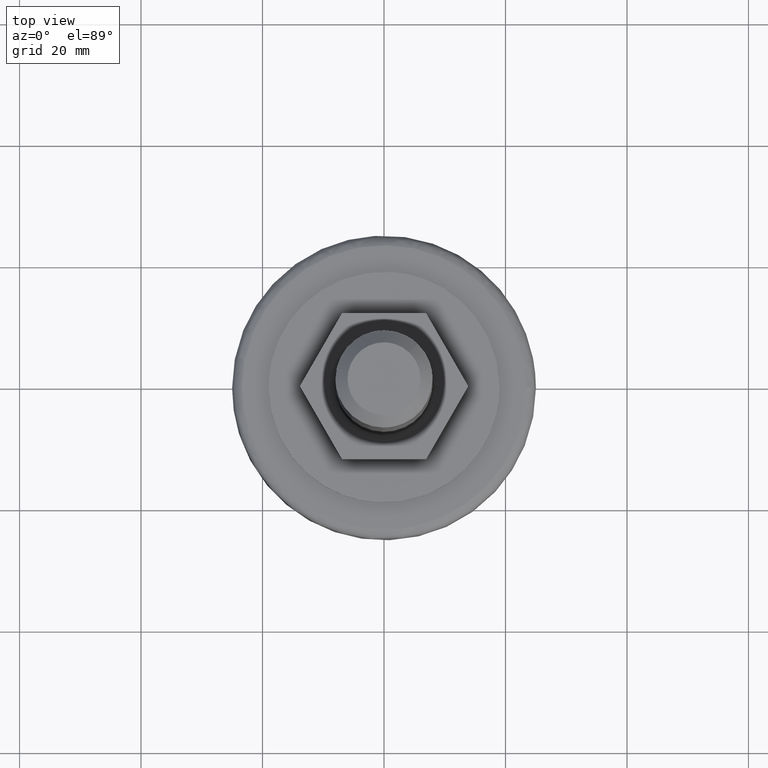
[diagram: clean part render]
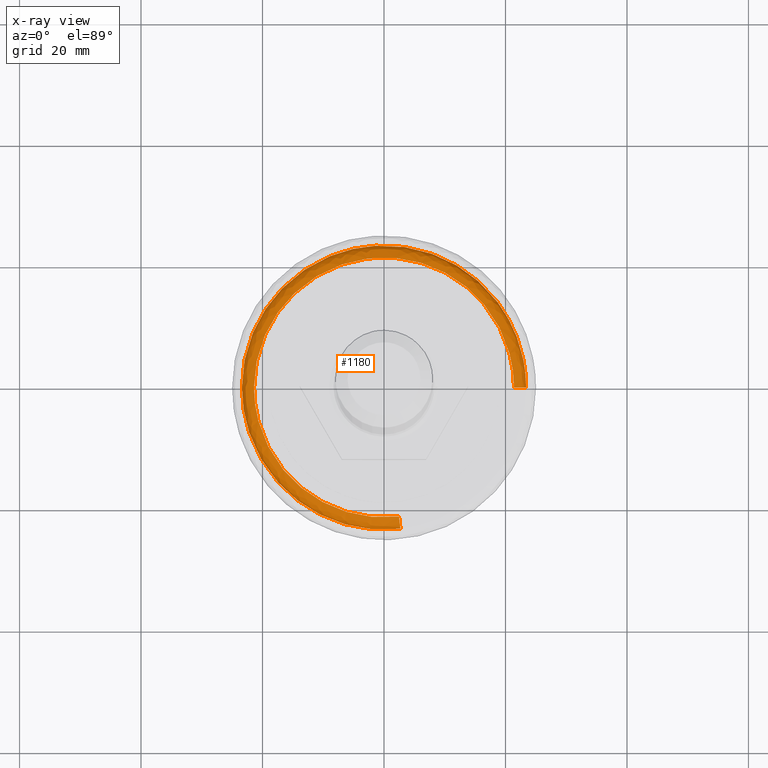
[diagram: x-ray — body ghosted, one internal face saturated and labeled with its STEP entity id]
A machine part, top view, then the same camera in x-ray: the body is ghosted and one INTERNAL B-rep face — a face not visible from any outside direction — is saturated and labeled: STEP entity #1180.
In plain terms, the highlighted face is a freeform B-spline surface patch.
Its self-contained STEP definition (entity closure, byte-faithful):
#898=CARTESIAN_POINT('',(21.905765991877519,8.227843964781197,12.900000000006751));
#899=VERTEX_POINT('',#898);
#900=CARTESIAN_POINT('',(23.399999999999999,1.921379E-017,12.900000000010650));
#901=VERTEX_POINT('',#900);
#902=CARTESIAN_POINT('',(21.905765991877512,8.227843964781197,12.900000000006751));
#903=CARTESIAN_POINT('',(23.399999999999999,4.249603655535283,12.900000000008713));
#904=CARTESIAN_POINT('',(23.399999999999999,1.921379E-017,12.900000000010650));
#912=(BOUNDED_CURVE()B_SPLINE_CURVE(2,(#902,#903,#904),.UNSPECIFIED.,.F.,.U.)B_SPLINE_CURVE_WITH_KNOTS((3,3),(0.440284290851429,0.500000000000000),.UNSPECIFIED.)CURVE()GEOMETRIC_REPRESENTATION_ITEM()RATIONAL_B_SPLINE_CURVE((0.893499701429310,0.930038694934988,1.0))REPRESENTATION_ITEM(''));
#913=EDGE_CURVE('',#899,#901,#912,.T.);
#915=CARTESIAN_POINT('',(2.701862966264285,-23.243492347569660,12.900000000008220));
#916=VERTEX_POINT('',#915);
#930=CARTESIAN_POINT('',(-23.399999999999999,0.0,12.900000000000000));
#931=VERTEX_POINT('',#930);
#932=CARTESIAN_POINT('',(2.701862966264285,-23.243492347569664,12.900000000008220));
#933=CARTESIAN_POINT('',(1.355464400901188,-23.400000000000006,12.900000000000000));
#934=CARTESIAN_POINT('',(0.0,-23.399999999999999,12.900000000000000));
#935=CARTESIAN_POINT('',(-23.400000000000009,-23.400000000000009,12.900000000000002));
#936=CARTESIAN_POINT('',(-23.399999999999999,0.0,12.900000000000000));
#944=(BOUNDED_CURVE()B_SPLINE_CURVE(2,(#932,#933,#934,#935,#936),.UNSPECIFIED.,.F.,.U.)B_SPLINE_CURVE_WITH_KNOTS((3,2,3),(0.729999999999843,0.750000000000000,1.0),.UNSPECIFIED.)CURVE()GEOMETRIC_REPRESENTATION_ITEM()RATIONAL_B_SPLINE_CURVE((0.956886118190352,0.976568542494740,1.0,0.707106781186548,1.0))REPRESENTATION_ITEM(''));
#945=EDGE_CURVE('',#916,#931,#944,.T.);
#947=CARTESIAN_POINT('',(-1.428506148875798,23.356356098110432,12.899999999999940));
#948=VERTEX_POINT('',#947);
#949=CARTESIAN_POINT('',(-23.399999999999999,0.0,12.900000000000000));
#950=CARTESIAN_POINT('',(-23.400000000000006,22.012549986659035,12.900000000000000));
#951=CARTESIAN_POINT('',(-1.428506148875798,23.356356098110428,12.899999999999945));
#959=(BOUNDED_CURVE()B_SPLINE_CURVE(2,(#949,#950,#951),.UNSPECIFIED.,.F.,.U.)B_SPLINE_CURVE_WITH_KNOTS((3,3),(0.0,0.239333181477415),.UNSPECIFIED.)CURVE()GEOMETRIC_REPRESENTATION_ITEM()RATIONAL_B_SPLINE_CURVE((1.0,0.719603736432863,0.976072511536947))REPRESENTATION_ITEM(''));
#960=EDGE_CURVE('',#931,#948,#959,.T.);
#1042=CARTESIAN_POINT('',(-1.428506148875798,23.356356098110428,12.899999999999945));
#1043=CARTESIAN_POINT('',(-0.714919781463853,23.399999999999999,12.900000000000006));
#1044=CARTESIAN_POINT('',(0.0,23.399999999999999,12.900000000000000));
#1045=CARTESIAN_POINT('',(16.207077687016458,23.399999999999999,12.900000000000004));
#1046=CARTESIAN_POINT('',(21.905765991877512,8.227843964781197,12.900000000006751));
#1054=(BOUNDED_CURVE()B_SPLINE_CURVE(2,(#1042,#1043,#1044,#1045,#1046),.UNSPECIFIED.,.F.,.U.)B_SPLINE_CURVE_WITH_KNOTS((3,2,3),(0.239333181477415,0.250000000000000,0.440284290851429),.UNSPECIFIED.)CURVE()GEOMETRIC_REPRESENTATION_ITEM()RATIONAL_B_SPLINE_CURVE((0.976072511536947,0.987503044753684,1.0,0.777068086251559,0.893499701429310))REPRESENTATION_ITEM(''));
#1055=EDGE_CURVE('',#948,#899,#1054,.T.);
#1077=CARTESIAN_POINT('',(2.454917021442404,-21.119095162452339,14.895184650738340));
#1078=CARTESIAN_POINT('',(1.231577119022009,-21.261298127416524,14.895184650738333));
#1079=CARTESIAN_POINT('',(2.603672E-015,-21.261298127416520,14.895184650738333));
#1080=CARTESIAN_POINT('',(-21.261298127416520,-21.261298127416534,14.895184650738335));
#1081=CARTESIAN_POINT('',(-21.261298127416520,-3.905508E-015,14.895184650738333));
#1082=CARTESIAN_POINT('',(-21.261298127416534,21.261298127416520,14.895184650738335));
#1083=CARTESIAN_POINT('',(-5.207344E-015,21.261298127416520,14.895184650738333));
#1084=CARTESIAN_POINT('',(21.261298127416520,21.261298127416534,14.895184650738335));
#1085=CARTESIAN_POINT('',(21.261298127416520,6.509180E-015,14.895184650738333));
#1086=CARTESIAN_POINT('',(2.719812604689965,-23.397931873369568,15.054672244805426));
#1087=CARTESIAN_POINT('',(1.364469325319883,-23.555479119633166,15.054672244805426));
#1088=CARTESIAN_POINT('',(2.884619E-015,-23.555479119633173,15.054672244805424));
#1089=CARTESIAN_POINT('',(-23.555479119633169,-23.555479119633173,15.054672244805426));
#1090=CARTESIAN_POINT('',(-23.555479119633173,-4.326928E-015,15.054672244805424));
#1091=CARTESIAN_POINT('',(-23.555479119633176,23.555479119633166,15.054672244805426));
#1092=CARTESIAN_POINT('',(-5.769238E-015,23.555479119633173,15.054672244805424));
#1093=CARTESIAN_POINT('',(23.555479119633166,23.555479119633180,15.054672244805426));
#1094=CARTESIAN_POINT('',(23.555479119633173,7.211547E-015,15.054672244805424));
#1095=CARTESIAN_POINT('',(2.701298333023367,-23.238657787208954,12.760551126614018));
#1096=CARTESIAN_POINT('',(1.355181128138153,-23.395132579983429,12.760551126614013));
#1097=CARTESIAN_POINT('',(2.864983E-015,-23.395132579983432,12.760551126614009));
#1098=CARTESIAN_POINT('',(-23.395132579983414,-23.395132579983446,12.760551126614008));
#1099=CARTESIAN_POINT('',(-23.395132579983432,-4.297474E-015,12.760551126614009));
#1100=CARTESIAN_POINT('',(-23.395132579983446,23.395132579983414,12.760551126614008));
#1101=CARTESIAN_POINT('',(-5.729966E-015,23.395132579983432,12.760551126614009));
#1102=CARTESIAN_POINT('',(23.395132579983414,23.395132579983446,12.760551126614008));
#1103=CARTESIAN_POINT('',(23.395132579983432,7.162457E-015,12.760551126614009));
#1111=(BOUNDED_SURFACE()B_SPLINE_SURFACE(2,2,((#1077,#1086,#1095),(#1078,#1087,#1096),(#1079,#1088,#1097),(#1080,#1089,#1098),(#1081,#1090,#1099),(#1082,#1091,#1100),(#1083,#1092,#1101),(#1084,#1093,#1102),(#1085,#1094,#1103)),.UNSPECIFIED.,.F.,.F.,.U.)B_SPLINE_SURFACE_WITH_KNOTS((3,2,2,2,3),(3,3),(0.0,3.100983029275963,41.863307861859141,80.625632694442317,119.387957527025510),(0.0,3.644742137595679),.UNSPECIFIED.)GEOMETRIC_REPRESENTATION_ITEM()RATIONAL_B_SPLINE_SURFACE(((0.876475925220254,0.573569815709612,0.871620944530905),(0.894504357997792,0.585367703784116,0.889549514105730),(0.915966774072356,0.599412806083392,0.910893045436754),(0.647686317288129,0.423848859911623,0.644098649363994),(0.915966774072356,0.599412806083392,0.910893045436754),(0.647686317288129,0.423848859911623,0.644098649363994),(0.915966774072356,0.599412806083392,0.910893045436754),(0.647686317288129,0.423848859911623,0.644098649363994),(0.915966774072356,0.599412806083392,0.910893045436754)))REPRESENTATION_ITEM('')SURFACE());
#1112=CARTESIAN_POINT('',(2.470934508070734,-21.256869072857160,14.900000000000000));
#1113=VERTEX_POINT('',#1112);
#1114=CARTESIAN_POINT('',(-21.399999999999999,0.0,14.900000000000000));
#1115=VERTEX_POINT('',#1114);
#1116=CARTESIAN_POINT('',(2.470934508070733,-21.256869072857164,14.899999999999997));
#1117=CARTESIAN_POINT('',(1.239612742833417,-21.399999999999999,14.900000000000006));
#1118=CARTESIAN_POINT('',(0.0,-21.399999999999999,14.900000000000000));
#1119=CARTESIAN_POINT('',(-21.400000000000002,-21.400000000000002,14.900000000000002));
#1120=CARTESIAN_POINT('',(-21.399999999999999,0.0,14.900000000000000));
#1128=(BOUNDED_CURVE()B_SPLINE_CURVE(2,(#1116,#1117,#1118,#1119,#1120),.UNSPECIFIED.,.F.,.U.)B_SPLINE_CURVE_WITH_KNOTS((3,2,3),(0.729999999997812,0.750000000000000,1.0),.UNSPECIFIED.)CURVE()GEOMETRIC_REPRESENTATION_ITEM()RATIONAL_B_SPLINE_CURVE((0.956886118186354,0.976568542492361,1.0,0.707106781186548,1.0))REPRESENTATION_ITEM(''));
#1129=EDGE_CURVE('',#1113,#1115,#1128,.T.);
#1130=ORIENTED_EDGE('',*,*,#1129,.T.);
#1131=CARTESIAN_POINT('',(21.400000000094401,7.535010E-016,14.900000000000000));
#1132=VERTEX_POINT('',#1131);
#1133=CARTESIAN_POINT('',(-21.399999999999999,0.0,14.900000000000000));
#1134=CARTESIAN_POINT('',(-21.400000000000002,21.400000000000002,14.900000000000002));
#1135=CARTESIAN_POINT('',(0.0,21.399999999999999,14.900000000000000));
#1136=CARTESIAN_POINT('',(21.400000000000002,21.400000000000002,14.900000000000002));
#1137=CARTESIAN_POINT('',(21.400000000094401,7.535010E-016,14.900000000000000));
#1145=(BOUNDED_CURVE()B_SPLINE_CURVE(2,(#1133,#1134,#1135,#1136,#1137),.UNSPECIFIED.,.F.,.U.)B_SPLINE_CURVE_WITH_KNOTS((3,2,3),(0.0,0.250000000000000,0.500000000000000),.UNSPECIFIED.)CURVE()GEOMETRIC_REPRESENTATION_ITEM()RATIONAL_B_SPLINE_CURVE((1.0,0.707106781186548,1.0,0.707106781186548,1.0))REPRESENTATION_ITEM(''));
#1146=EDGE_CURVE('',#1115,#1132,#1145,.T.);
#1147=ORIENTED_EDGE('',*,*,#1146,.T.);
#1148=CARTESIAN_POINT('',(21.400000000094394,7.535010E-016,14.900000000000000));
#1149=CARTESIAN_POINT('',(23.399999999978700,3.403246E-016,14.899999999811198));
#1150=CARTESIAN_POINT('',(23.400000000000009,1.921379E-017,12.900000000010648));
#1158=(BOUNDED_CURVE()B_SPLINE_CURVE(2,(#1148,#1149,#1150),.UNSPECIFIED.,.F.,.U.)B_SPLINE_CURVE_WITH_KNOTS((3,3),(-1.736413120974468,-0.276558718026194),.UNSPECIFIED.)CURVE()GEOMETRIC_REPRESENTATION_ITEM()RATIONAL_B_SPLINE_CURVE((0.888510409027498,0.626638727256723,0.883897567134801))REPRESENTATION_ITEM(''));
#1159=EDGE_CURVE('',#1132,#901,#1158,.T.);
#1160=ORIENTED_EDGE('',*,*,#1159,.T.);
#1161=ORIENTED_EDGE('',*,*,#913,.F.);
#1162=ORIENTED_EDGE('',*,*,#1055,.F.);
#1163=ORIENTED_EDGE('',*,*,#960,.F.);
#1164=ORIENTED_EDGE('',*,*,#945,.F.);
#1165=CARTESIAN_POINT('',(2.470934508070734,-21.256869072857167,14.900000000000007));
#1166=CARTESIAN_POINT('',(2.701862966251633,-23.243492347554572,14.899999994216522));
#1167=CARTESIAN_POINT('',(2.701862966264286,-23.243492347569656,12.900000000008212));
#1175=(BOUNDED_CURVE()B_SPLINE_CURVE(2,(#1165,#1166,#1167),.UNSPECIFIED.,.F.,.U.)B_SPLINE_CURVE_WITH_KNOTS((3,3),(-1.736413118079327,-0.276558718023692),.UNSPECIFIED.)CURVE()GEOMETRIC_REPRESENTATION_ITEM()RATIONAL_B_SPLINE_CURVE((0.850203275272426,0.599621899720384,0.845789311894631))REPRESENTATION_ITEM(''));
#1176=EDGE_CURVE('',#1113,#916,#1175,.T.);
#1177=ORIENTED_EDGE('',*,*,#1176,.F.);
#1178=EDGE_LOOP('',(#1130,#1147,#1160,#1161,#1162,#1163,#1164,#1177));
#1179=FACE_OUTER_BOUND('',#1178,.T.);
#1180=ADVANCED_FACE('',(#1179),#1111,.T.);